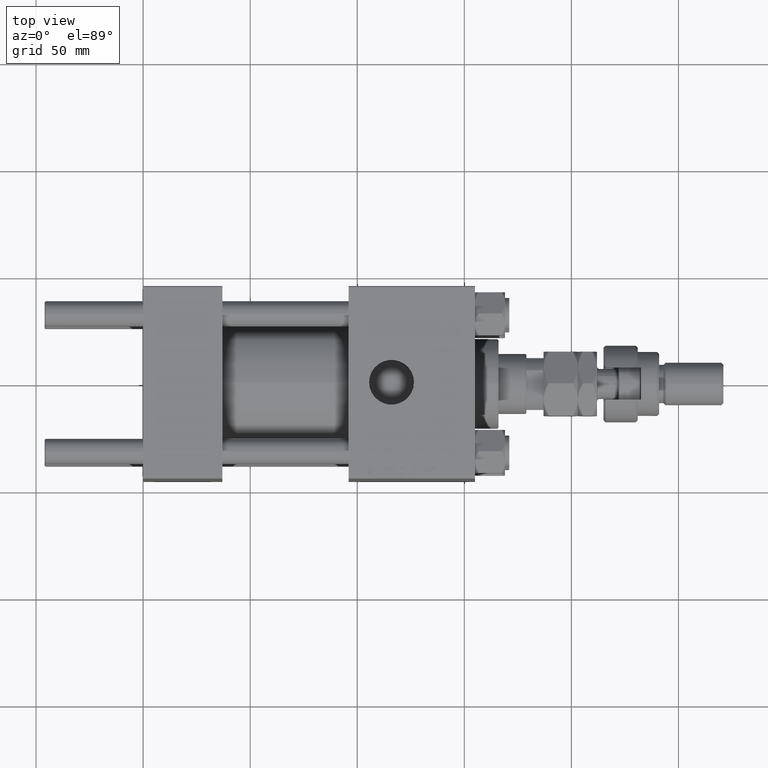
[diagram: clean part render]
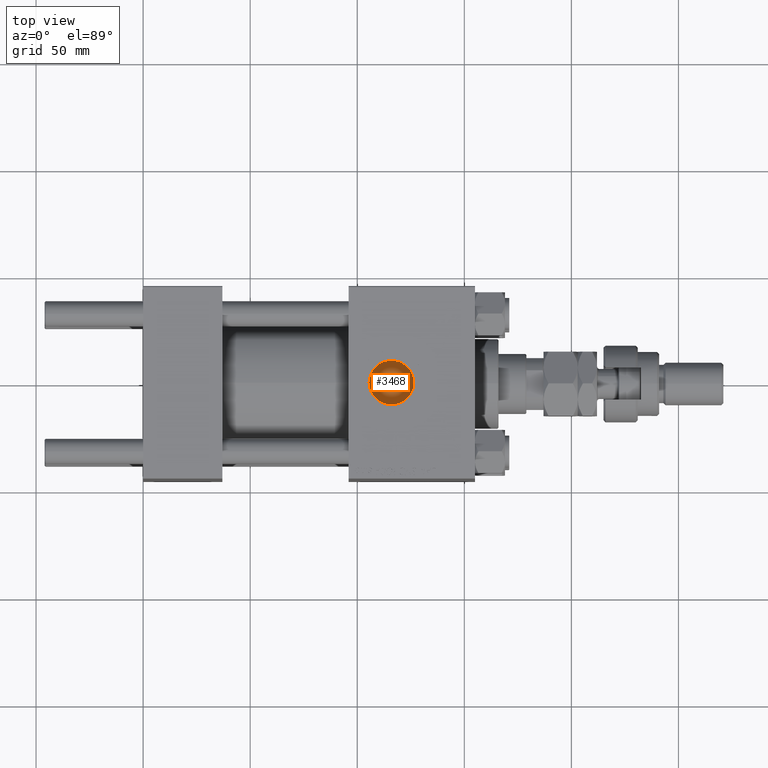
[diagram: same view with one face highlighted and labeled with its STEP entity id]
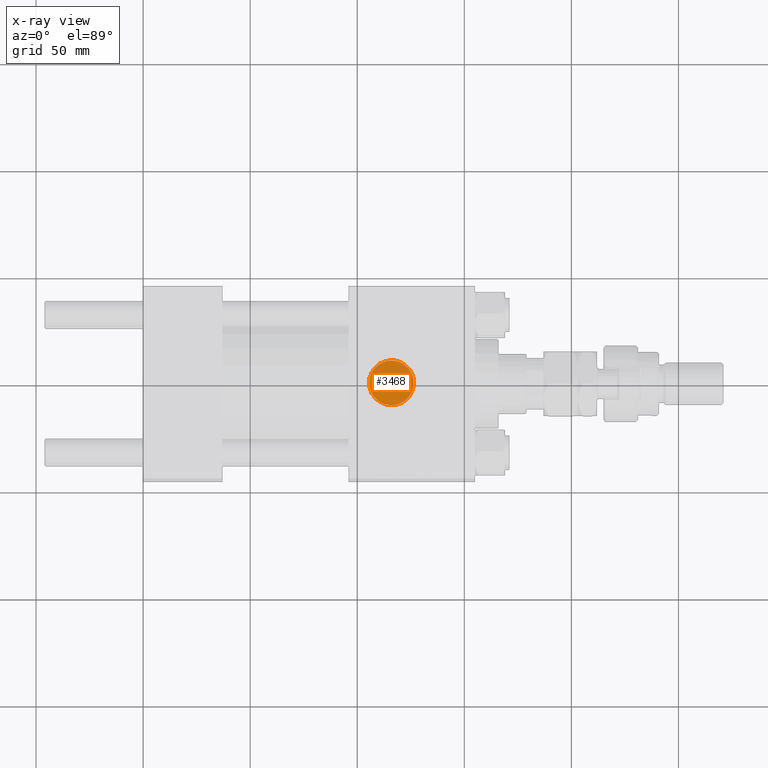
[diagram: x-ray of the same camera — body ghosted, the highlighted face saturated]
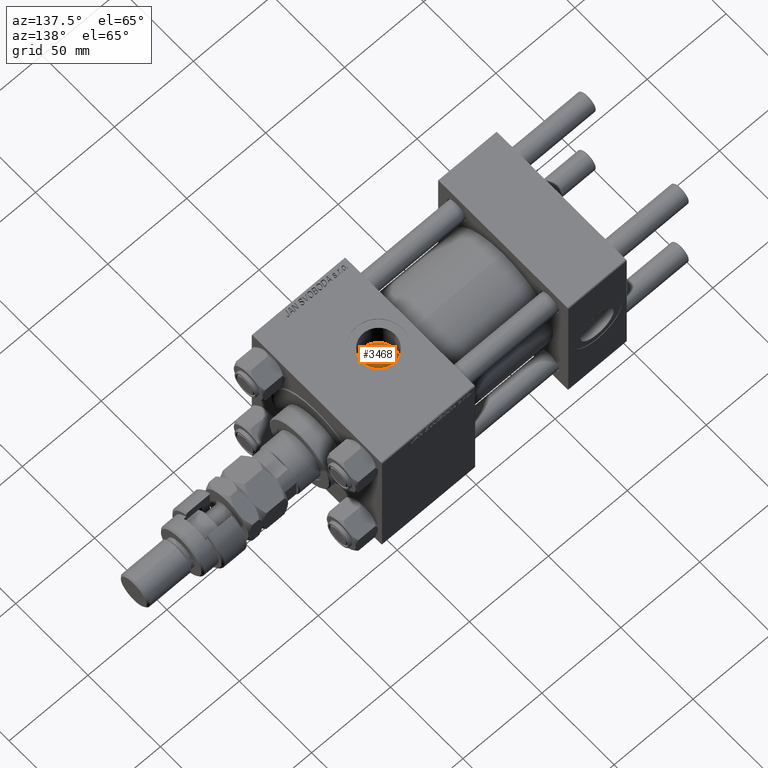
[diagram: same view with one face highlighted and labeled with its STEP entity id]
A machine part, top view. The second image highlights one B-rep face of the part: STEP entity #3468.
The next image is the same camera in x-ray: the body ghosted, the highlighted face saturated — about 0% of this face is hidden behind the body in this view.
A second angle (auxiliary view) of the same face is appended — the face is thin or edge-on in the first view.
In plain terms, the highlighted planar face has unit normal (0, 0, 1).
Its self-contained STEP definition (entity closure, byte-faithful):
#1464 = DIRECTION ( 'NONE',  ( 0.000000000000000000, 0.000000000000000000, 1.000000000000000000 ) ) ;
#1617 = PLANE ( 'NONE',  #30603 ) ;
#3468 = ADVANCED_FACE ( 'NONE', ( #10119 ), #1617, .T. ) ;
#7343 = CIRCLE ( 'NONE', #37071, 10.48000000000000398 ) ;
#8070 = DIRECTION ( 'NONE',  ( 0.000000000000000000, 0.000000000000000000, 1.000000000000000000 ) ) ;
#8825 = CIRCLE ( 'NONE', #26533, 10.48000000000000398 ) ;
#10119 = FACE_OUTER_BOUND ( 'NONE', #36365, .T. ) ;
#11725 = CARTESIAN_POINT ( 'NONE',  ( 126.2999999999999972, -1.934011375354403928, 28.59999999999998721 ) ) ;
#12315 = CARTESIAN_POINT ( 'NONE',  ( 116.0000000000000000, -6.938893903907227589E-15, 28.59999999999998721 ) ) ;
#12439 = EDGE_CURVE ( 'NONE', #45708, #43714, #8825, .T. ) ;
#12609 = EDGE_CURVE ( 'NONE', #45708, #45149, #49330, .T. ) ;
#12879 = ORIENTED_EDGE ( 'NONE', *, *, #12439, .T. ) ;
#13109 = DIRECTION ( 'NONE',  ( 0.000000000000000000, -1.000000000000000000, 0.000000000000000000 ) ) ;
#22081 = CARTESIAN_POINT ( 'NONE',  ( 116.0000000000000000, -6.938893903907227589E-15, 28.59999999999998721 ) ) ;
#24275 = DIRECTION ( 'NONE',  ( 1.000000000000000000, 0.000000000000000000, 0.000000000000000000 ) ) ;
#25290 = DIRECTION ( 'NONE',  ( 1.000000000000000000, 0.000000000000000000, -0.000000000000000000 ) ) ;
#25653 = CARTESIAN_POINT ( 'NONE',  ( 116.0000000000000000, -6.938893903907227589E-15, 28.59999999999998721 ) ) ;
#25859 = EDGE_CURVE ( 'NONE', #43714, #45149, #7343, .T. ) ;
#26533 = AXIS2_PLACEMENT_3D ( 'NONE', #25653, #1464, #33888 ) ;
#30603 = AXIS2_PLACEMENT_3D ( 'NONE', #22081, #38325, #25290 ) ;
#33888 = DIRECTION ( 'NONE',  ( 1.000000000000000000, 0.000000000000000000, 0.000000000000000000 ) ) ;
#36365 = EDGE_LOOP ( 'NONE', ( #12879, #47626, #44943 ) ) ;
#37071 = AXIS2_PLACEMENT_3D ( 'NONE', #12315, #8070, #24275 ) ;
#38325 = DIRECTION ( 'NONE',  ( 0.000000000000000000, 0.000000000000000000, 1.000000000000000000 ) ) ;
#40800 = CARTESIAN_POINT ( 'NONE',  ( 126.2999999999999972, 1.934011375354389939, 28.59999999999998721 ) ) ;
#41075 = CARTESIAN_POINT ( 'NONE',  ( 126.2999999999999972, 0.000000000000000000, 28.59999999999998721 ) ) ;
#43714 = VERTEX_POINT ( 'NONE', #49112 ) ;
#44943 = ORIENTED_EDGE ( 'NONE', *, *, #12609, .F. ) ;
#45149 = VERTEX_POINT ( 'NONE', #11725 ) ;
#45708 = VERTEX_POINT ( 'NONE', #40800 ) ;
#47626 = ORIENTED_EDGE ( 'NONE', *, *, #25859, .T. ) ;
#49112 = CARTESIAN_POINT ( 'NONE',  ( 105.5199999999999960, -6.938893903907227589E-15, 28.59999999999998721 ) ) ;
#49330 = LINE ( 'NONE', #41075, #52130 ) ;
#52130 = VECTOR ( 'NONE', #13109, 1000.000000000000000 ) ;